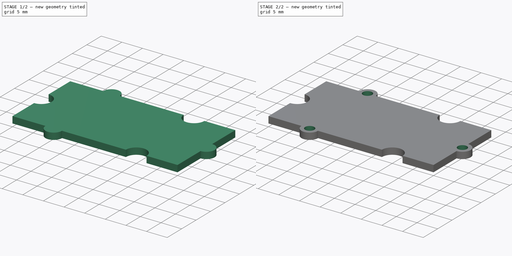
[diagram: build sequence overview — one tinted view per stage of 2, left to right]
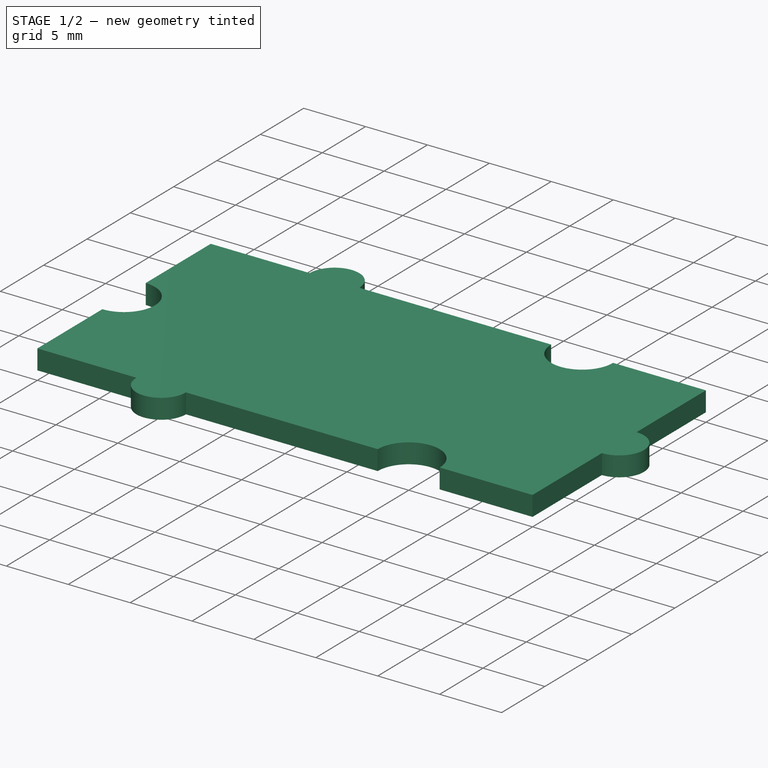
[diagram: stage 1 of 2 — iso view after this stage's code; geometry added in this stage tinted green]
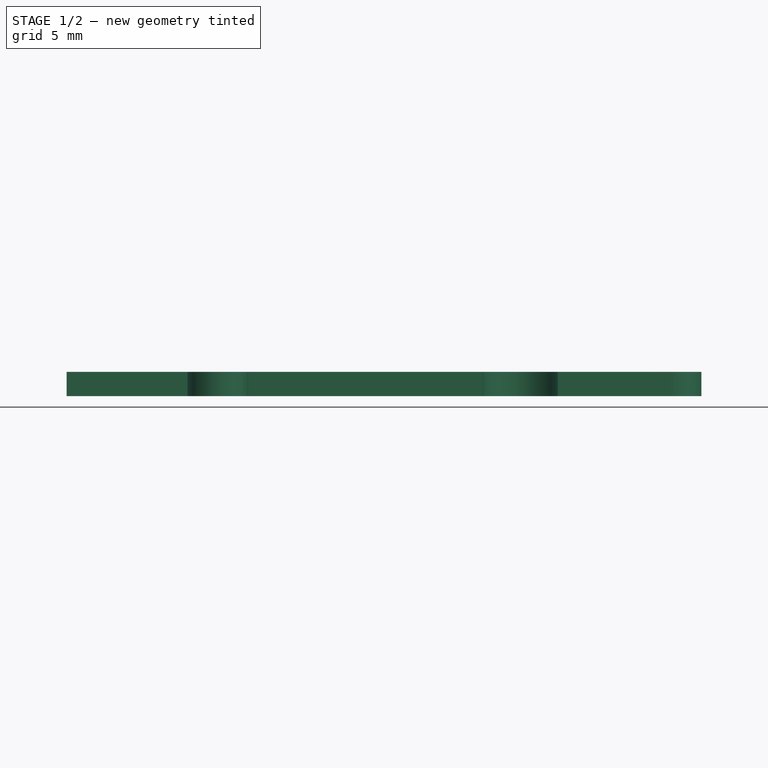
[diagram: stage 1 of 2 — front view after this stage's code; geometry added in this stage tinted green]
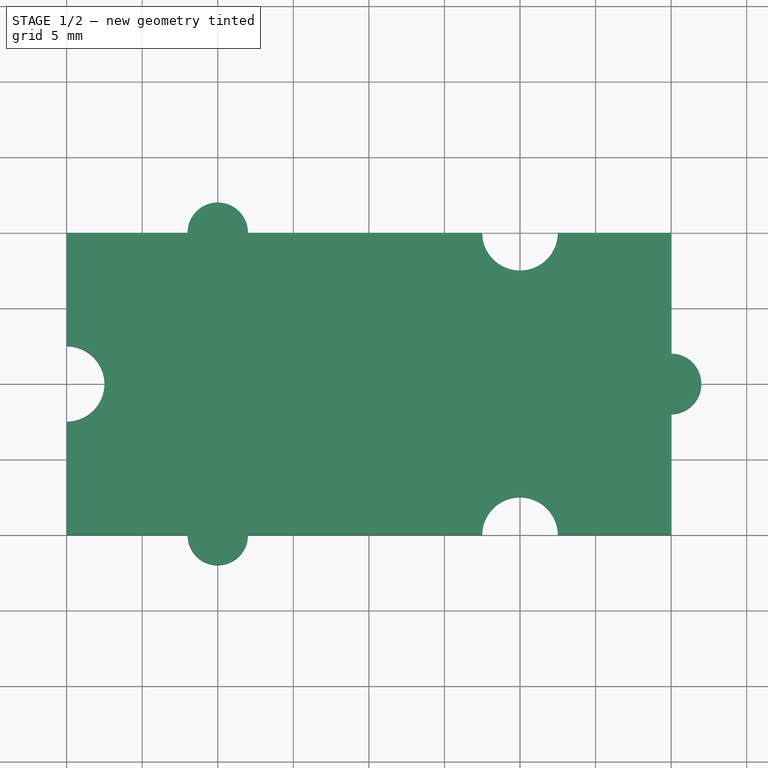
[diagram: stage 1 of 2 — top view after this stage's code; geometry added in this stage tinted green]
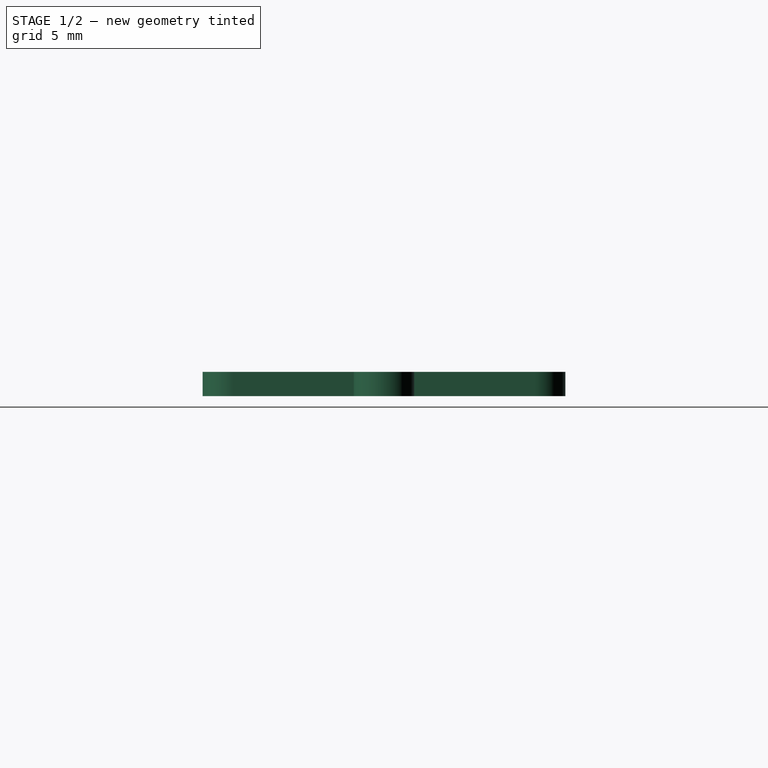
[diagram: stage 1 of 2 — right view after this stage's code; geometry added in this stage tinted green]
FCSTD DOCUMENT  (FreeCAD 0.19R24276 (Git))
Label: Template_GroveDoubleBoard
License: All rights reserved
LicenseURL: http://en.wikipedia.org/wiki/All_rights_reserved
objects: Sketcher::SketchObject×2, PartDesign::Pad×1, PartDesign::Pocket×1, PartDesign::Body×1, App::Part×1
note: 7 computed .brp shape members not serialized (recipe doc carries the construction recipe); baked Part::Feature solids carry a one-line shape summary decoded from their .brp

FEATURE [Sketcher::SketchObject] Sketch
  FullyConstrained = true
  MapMode = 5
  Support = -> [XY_Plane001]
  sketch-geometry (26):
    g0: LineSegment StartX=-20 StartY=10 StartZ=0 EndX=-12 EndY=10 EndZ=0
    g1: LineSegment StartX=-8 StartY=10 StartZ=0 EndX=0 EndY=10 EndZ=0
    g2: LineSegment StartX=0 StartY=10 StartZ=0 EndX=7.5 EndY=10 EndZ=0
    g3: LineSegment StartX=12.5 StartY=10 StartZ=0 EndX=20 EndY=10 EndZ=0
    g4: LineSegment StartX=20 StartY=-10 StartZ=0 EndX=12.5 EndY=-10 EndZ=0
    g5: LineSegment StartX=7.5 StartY=-10 StartZ=0 EndX=0 EndY=-10 EndZ=0
    g6: LineSegment StartX=0 StartY=-10 StartZ=0 EndX=-8 EndY=-10 EndZ=0
    g7: LineSegment StartX=-12 StartY=-10 StartZ=0 EndX=-20 EndY=-10 EndZ=0
    g8: LineSegment StartX=-12 StartY=10 StartZ=0 EndX=-8 EndY=10 EndZ=0
    g9: LineSegment StartX=-12 StartY=-10 StartZ=0 EndX=-8 EndY=-10 EndZ=0
    g10: LineSegment StartX=7.5 StartY=10 StartZ=0 EndX=12.5 EndY=10 EndZ=0
    g11: LineSegment StartX=7.5 StartY=-10 StartZ=0 EndX=12.5 EndY=-10 EndZ=0
    g12: LineSegment StartX=20 StartY=10 StartZ=0 EndX=20 EndY=2 EndZ=0
    g13: LineSegment StartX=20 StartY=-10 StartZ=0 EndX=20 EndY=-2 EndZ=0
    g14: LineSegment StartX=-20 StartY=-2.5 StartZ=0 EndX=-20 EndY=2.5 EndZ=0
    g15: LineSegment StartX=20 StartY=2 StartZ=0 EndX=20 EndY=-2 EndZ=0
    g16: ArcOfCircle CenterX=20 CenterY=0 CenterZ=0 NormalX=0 NormalY=0 NormalZ=1 AngleXU=0 Radius=2 StartAngle=4.71239 EndAngle=7.85398
    g17: ArcOfCircle CenterX=-10 CenterY=10 CenterZ=0 NormalX=0 NormalY=0 NormalZ=1 AngleXU=0 Radius=2 StartAngle=-9e-16 EndAngle=3.14159
    g18: ArcOfCircle CenterX=-10 CenterY=-10 CenterZ=0 NormalX=0 NormalY=0 NormalZ=1 AngleXU=0 Radius=2 StartAngle=3.14159 EndAngle=6.28319
    g19: ArcOfCircle CenterX=10 CenterY=10 CenterZ=0 NormalX=0 NormalY=0 NormalZ=1 AngleXU=0 Radius=2.5 StartAngle=3.14159 EndAngle=6.28319
    g20: ArcOfCircle CenterX=10 CenterY=-10 CenterZ=0 NormalX=0 NormalY=0 NormalZ=1 AngleXU=0 Radius=2.5 StartAngle=1e-15 EndAngle=3.14159
    g21: LineSegment StartX=-10 StartY=10 StartZ=0 EndX=-10 EndY=-10 EndZ=0
    g22: LineSegment StartX=10 StartY=10 StartZ=0 EndX=10 EndY=-10 EndZ=0
    g23: LineSegment StartX=-20 StartY=10 StartZ=0 EndX=-20 EndY=2.5 EndZ=0
    g24: LineSegment StartX=-20 StartY=-10 StartZ=0 EndX=-20 EndY=-2.5 EndZ=0
    g25: ArcOfCircle CenterX=-20 CenterY=0 CenterZ=0 NormalX=0 NormalY=0 NormalZ=1 AngleXU=0 Radius=2.5 StartAngle=4.71239 EndAngle=7.85398
  constraints (76):
    c: Horizontal(g0)
    c: PointOnObject(g1,g-2)
    c: Horizontal(g1)
    c: Coincident(g2,g1)
    c: Horizontal(g2)
    c: Horizontal(g3)
    c: Horizontal(g4)
    c: PointOnObject(g5,g-2)
    c: Horizontal(g5)
    c: Coincident(g6,g5)
    c: Horizontal(g6)
    c: Horizontal(g7)
    c: Coincident(g8,g0)
    c: Coincident(g8,g1)
    c: Horizontal(g8)
    c: Coincident(g9,g7)
    c: Coincident(g9,g6)
    c: Coincident(g10,g2)
    c: Coincident(g10,g3)
    c: Horizontal(g10)
    c: Coincident(g11,g5)
    c: Coincident(g11,g4)
    c: Horizontal(g11)
    c: Horizontal(g9)
    c: Coincident(g12,g3)
    c: Coincident(g13,g4)
    c: Vertical(g13)
    c: Vertical(g14)
    c: Coincident(g15,g12)
    c: Coincident(g15,g13)
    c: Vertical(g15)
    c: Vertical(g12)
    c: PointOnObject(g16,g-1)
    c: Coincident(g16,g12)
    c: Coincident(g16,g13)
    c: PointOnObject(g16,g15)
    c: Coincident(g17,g0)
    c: Coincident(g17,g1)
    c: Coincident(g18,g7)
    c: Coincident(g18,g6)
    c: Coincident(g19,g2)
    c: Coincident(g19,g3)
    c: Coincident(g20,g5)
    c: Coincident(g20,g4)
    c: Coincident(g21,g17)
    c: Coincident(g21,g18)
    c: Vertical(g21)
    c: Coincident(g22,g19)
    c: Coincident(g22,g20)
    c: Vertical(g22)
    c: Equal(g17,g18)
    c: Equal(g18,g16)
    c: Equal(g20,g19)
    c: PointOnObject(g19,g10)
    c: PointOnObject(g20,g11)
    c: PointOnObject(g17,g8)
    c: PointOnObject(g18,g9)
    c: Diameter(g17) = 4
    c: Equal(g1,g0)
    c: Equal(g2,g3)
    c: DistanceX(g0,g3) = 40
    c: DistanceX(g1,g3) = 20
    c: DistanceY(g4,g3) = 20
    c: Coincident(g23,g0)
    c: Vertical(g23)
    c: Coincident(g24,g7)
    c: Vertical(g24)
    c: Equal(g23,g24)
    c: PointOnObject(g25,g-1)
    c: Coincident(g25,g23)
    c: Coincident(g25,g24)
    c: Diameter(g19) = 5
    c: Equal(g25,g19)
    c: PointOnObject(g25,g14)
    c: Coincident(g14,g23)
    c: Coincident(g14,g24)
FEATURE [PartDesign::Pad] Pad
  Direction = (1,1,1)
  Length = 1.6
  Length2 = 100
  Profile = -> Sketch
  Type = 0
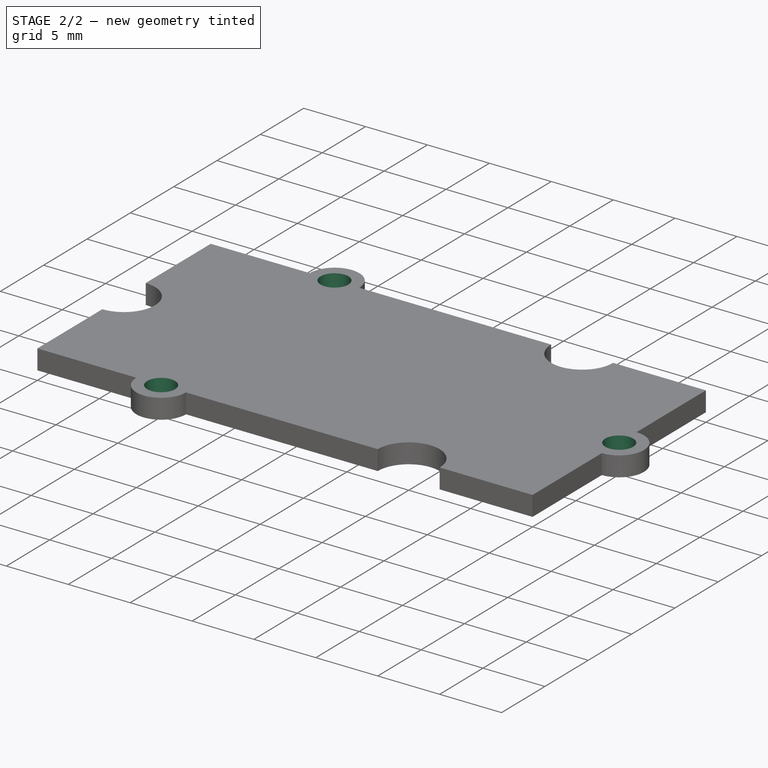
[diagram: stage 2 of 2 — iso view after this stage's code; geometry added in this stage tinted green]
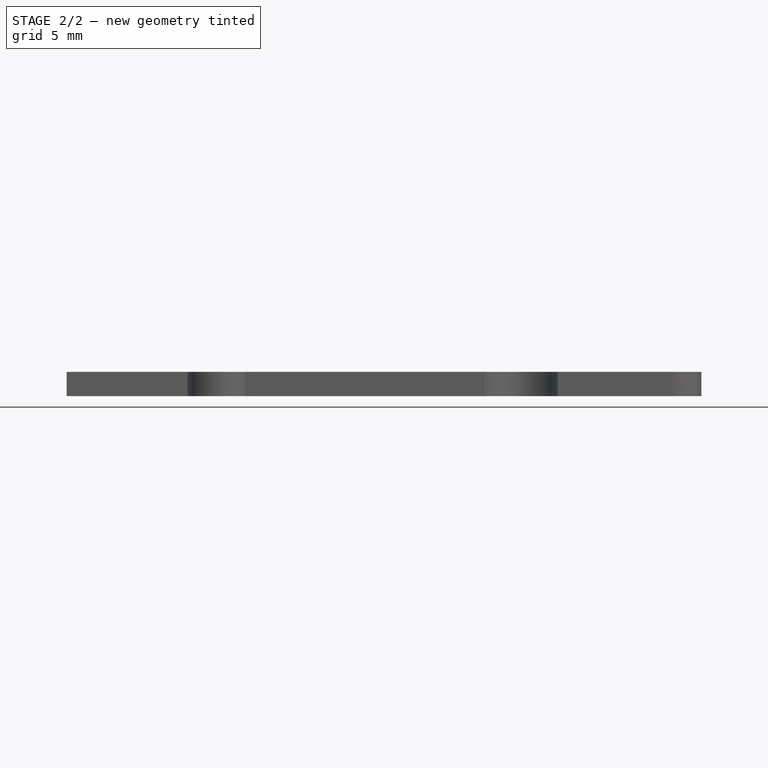
[diagram: stage 2 of 2 — front view after this stage's code; geometry added in this stage tinted green]
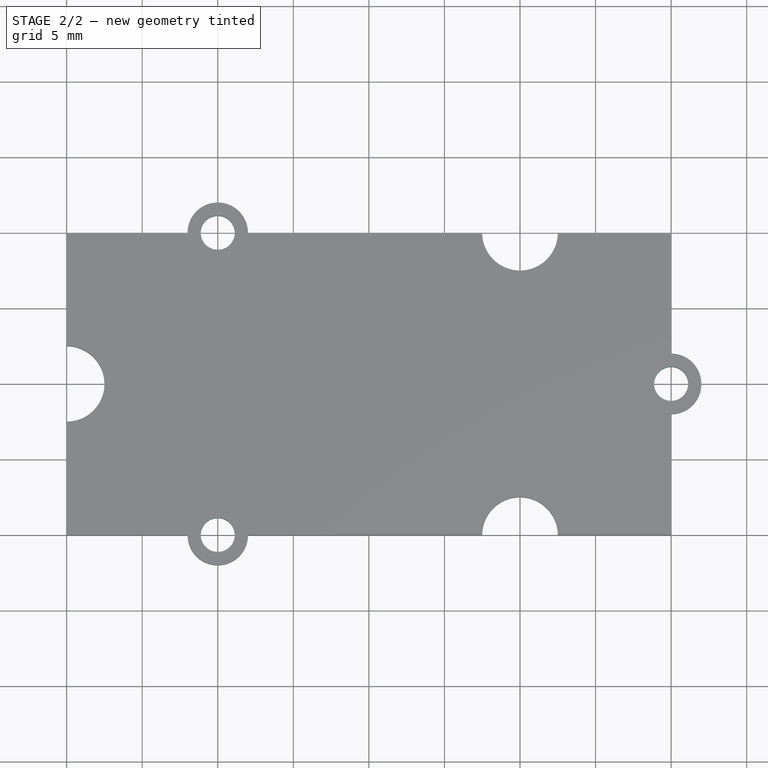
[diagram: stage 2 of 2 — top view after this stage's code; geometry added in this stage tinted green]
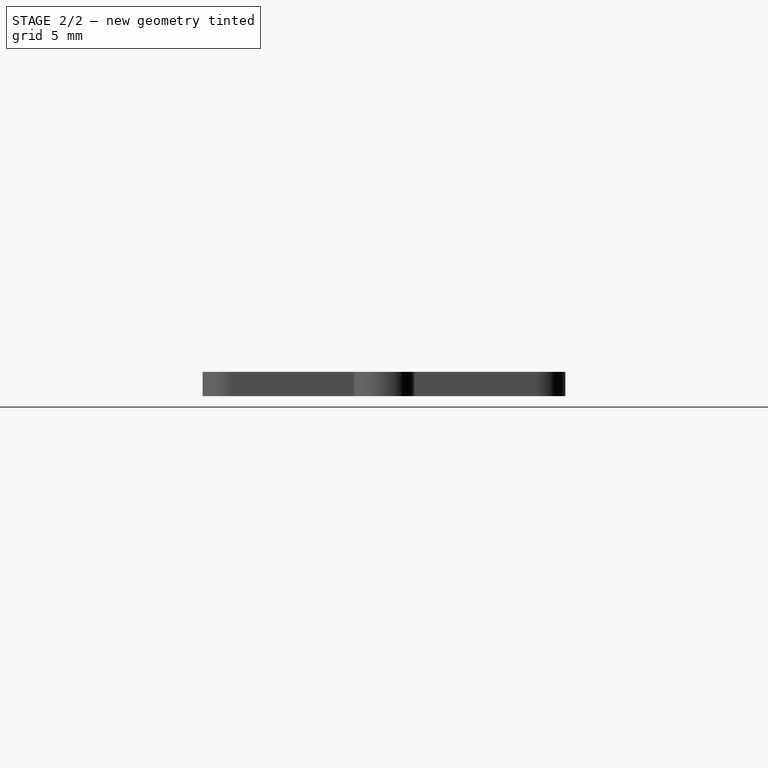
[diagram: stage 2 of 2 — right view after this stage's code; geometry added in this stage tinted green]
FEATURE [Sketcher::SketchObject] Sketch001
  FullyConstrained = true
  MapMode = 5
  Support = -> [XY_Plane001]
  sketch-geometry (6):
    g0: Circle CenterX=-10 CenterY=10 CenterZ=0 NormalX=0 NormalY=0 NormalZ=1 AngleXU=0 Radius=1.125
    g1: Circle CenterX=-10 CenterY=-10 CenterZ=0 NormalX=0 NormalY=0 NormalZ=1 AngleXU=0 Radius=1.125
    g2: Circle CenterX=20 CenterY=0 CenterZ=0 NormalX=0 NormalY=0 NormalZ=1 AngleXU=0 Radius=1.125
    g3: LineSegment StartX=-10 StartY=10 StartZ=0 EndX=-10 EndY=-10 EndZ=0
    g4: LineSegment StartX=0 StartY=0 StartZ=0 EndX=20 EndY=0 EndZ=0
    g5: LineSegment StartX=0 StartY=0 StartZ=0 EndX=-10 EndY=0 EndZ=0
  constraints (15):
    c: Coincident(g3,g0)
    c: Coincident(g3,g1)
    c: Coincident(g4,g-1)
    c: Coincident(g4,g2)
    c: Horizontal(g4)
    c: Coincident(g5,g-1)
    c: PointOnObject(g5,g-1)
    c: Symmetric(g0,g1,g5)
    c: Vertical(g3)
    c: Equal(g2,g0)
    c: Equal(g0,g1)
    c: Diameter(g0) = 2.25
    c: Distance(g5) = 10
    c: Distance(g4) = 20
    c: Distance(g3) = 20
FEATURE [PartDesign::Pocket] Pocket
  BaseFeature = -> Pad
  Length = 5
  Length2 = 100
  Profile = -> Sketch001
  Reversed = true
  Type = 1
FEATURE [PartDesign::Body] Body  label="GroveDBoard"
  Group = -> [Sketch,Pad,Sketch001,Pocket]
  Origin = -> Origin001
  Tip = -> Pocket
FEATURE [App::Part] Part  label="GroveDoubleBoard"
  Group = -> [Body]
  Origin = -> Origin
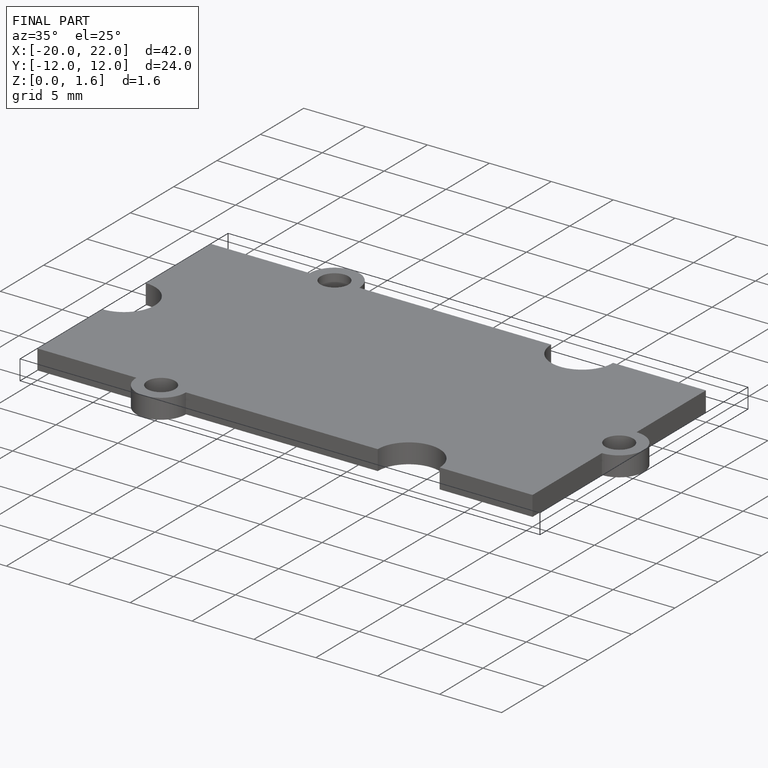
[diagram: finished part — iso view with bounding-box wireframe]
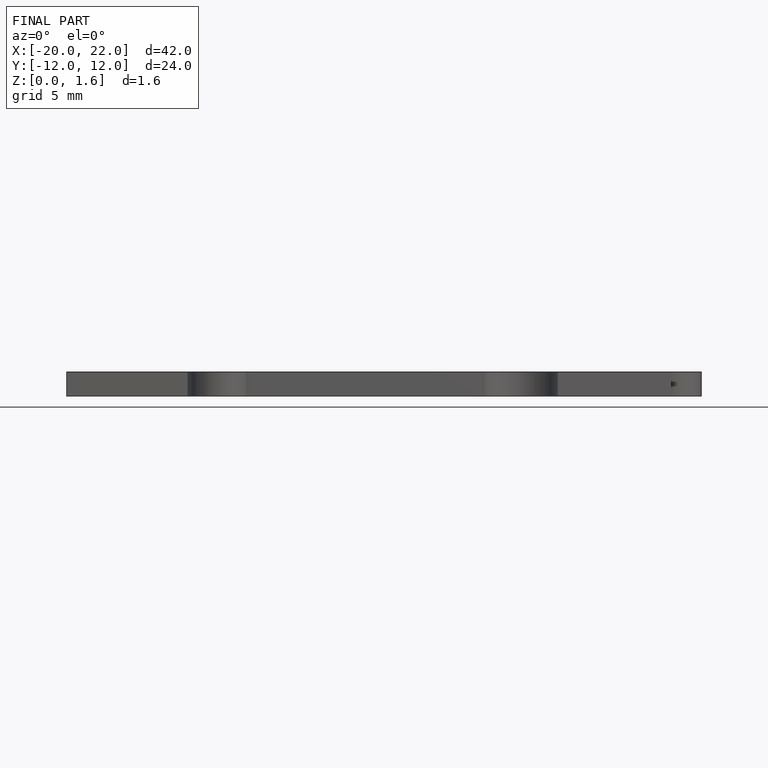
[diagram: finished part — front view with bounding-box wireframe]
